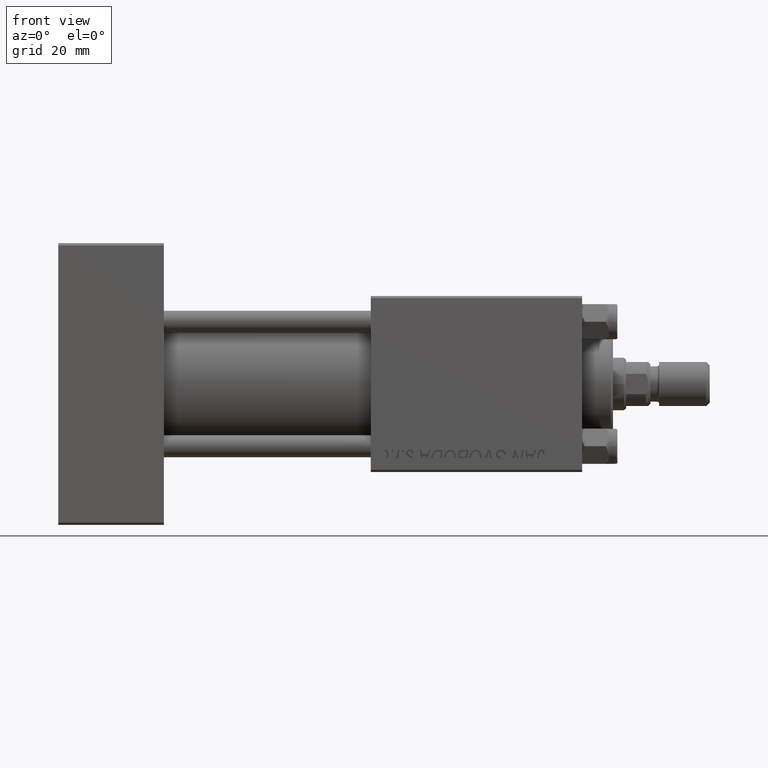
[diagram: clean part render]
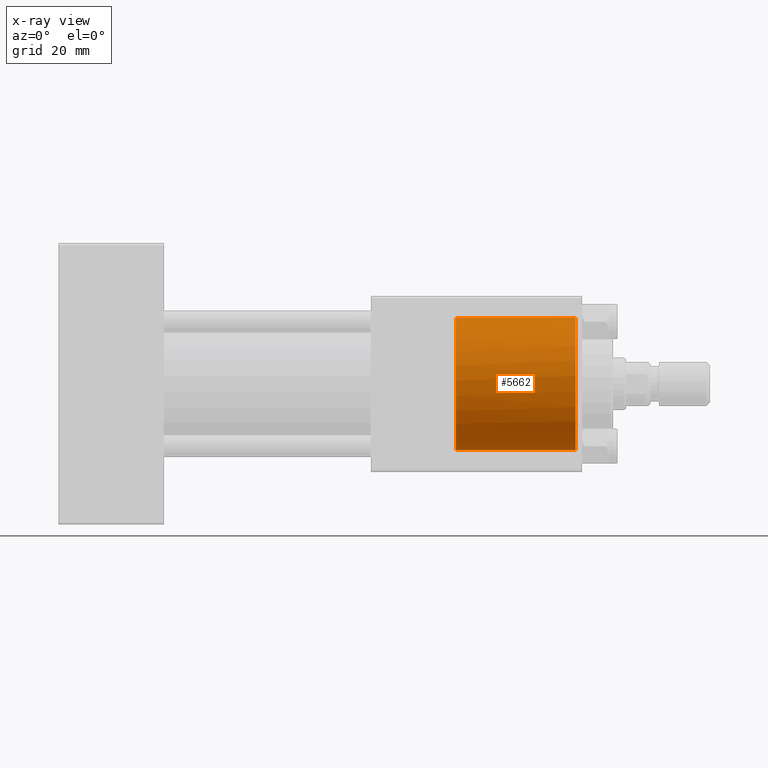
[diagram: x-ray — body ghosted, one internal face saturated and labeled with its STEP entity id]
A machine part, front view, then the same camera in x-ray: the body is ghosted and one INTERNAL B-rep face — a face not visible from any outside direction — is saturated and labeled: STEP entity #5662.
In plain terms, the highlighted cylindrical surface (partial cylindrical patch) has radius 15 mm, axis along (1, 0, 0).
Its self-contained STEP definition (entity closure, byte-faithful):
#595 = CIRCLE ( 'NONE', #33956, 15.00000000000000000 ) ;
#1414 = LINE ( 'NONE', #21283, #32960 ) ;
#2288 = VERTEX_POINT ( 'NONE', #40866 ) ;
#2489 = DIRECTION ( 'NONE',  ( 1.000000000000000000, -0.000000000000000000, -0.000000000000000000 ) ) ;
#3027 = CARTESIAN_POINT ( 'NONE',  ( 90.48627106246553353, -1.281108574220369167, 14.95816952780117504 ) ) ;
#4380 = VERTEX_POINT ( 'NONE', #9031 ) ;
#4706 = EDGE_CURVE ( 'NONE', #2288, #4380, #48576, .T. ) ;
#5662 = ADVANCED_FACE ( 'NONE', ( #26509 ), #37500, .F. ) ;
#5821 = DIRECTION ( 'NONE',  ( 1.000000000000000000, 0.000000000000000000, 0.000000000000000000 ) ) ;
#5831 = VECTOR ( 'NONE', #2489, 1000.000000000000000 ) ;
#7180 = DIRECTION ( 'NONE',  ( 0.000000000000000000, 0.000000000000000000, -1.000000000000000000 ) ) ;
#7770 = CARTESIAN_POINT ( 'NONE',  ( 90.30000000000001137, 0.000000000000000000, -15.00000000000000000 ) ) ;
#9031 = CARTESIAN_POINT ( 'NONE',  ( 117.5000000000000142, 1.836970198721029589E-15, 15.00000000000000000 ) ) ;
#10090 = DIRECTION ( 'NONE',  ( 1.000000000000000000, -0.000000000000000000, -0.000000000000000000 ) ) ;
#10578 = CIRCLE ( 'NONE', #48820, 15.00000000000000000 ) ;
#12420 = ORIENTED_EDGE ( 'NONE', *, *, #15391, .F. ) ;
#14801 = AXIS2_PLACEMENT_3D ( 'NONE', #30590, #49220, #7180 ) ;
#15391 = EDGE_CURVE ( 'NONE', #41285, #49831, #1414, .T. ) ;
#16794 = CARTESIAN_POINT ( 'NONE',  ( 90.30000000000001137, 0.000000000000000000, 0.000000000000000000 ) ) ;
#20728 = ORIENTED_EDGE ( 'NONE', *, *, #29446, .T. ) ;
#21085 = CARTESIAN_POINT ( 'NONE',  ( 117.5000000000000142, 0.000000000000000000, 0.000000000000000000 ) ) ;
#21283 = CARTESIAN_POINT ( 'NONE',  ( 90.30000000000001137, 0.000000000000000000, -15.00000000000000000 ) ) ;
#21562 = ORIENTED_EDGE ( 'NONE', *, *, #35892, .T. ) ;
#21758 = CARTESIAN_POINT ( 'NONE',  ( 90.30000000000001137, -1.899052395280420136, 14.87930105885285670 ) ) ;
#21861 = CARTESIAN_POINT ( 'NONE',  ( 90.30000000000001137, -1.899052395280420136, 14.87930105885285670 ) ) ;
#22104 = DIRECTION ( 'NONE',  ( 0.000000000000000000, 0.000000000000000000, 1.000000000000000000 ) ) ;
#25181 = ORIENTED_EDGE ( 'NONE', *, *, #4706, .T. ) ;
#26509 = FACE_OUTER_BOUND ( 'NONE', #38172, .T. ) ;
#29446 = EDGE_CURVE ( 'NONE', #4380, #49831, #10578, .T. ) ;
#30590 = CARTESIAN_POINT ( 'NONE',  ( 90.30000000000001137, 0.000000000000000000, 0.000000000000000000 ) ) ;
#32960 = VECTOR ( 'NONE', #10090, 1000.000000000000000 ) ;
#33337 = CARTESIAN_POINT ( 'NONE',  ( 90.58000000000154728, -0.6482402319151109316, 15.00000000000000000 ) ) ;
#33956 = AXIS2_PLACEMENT_3D ( 'NONE', #16794, #36671, #39714 ) ;
#34547 = CARTESIAN_POINT ( 'NONE',  ( 117.5000000000000142, 0.000000000000000000, -15.00000000000000000 ) ) ;
#34900 = ORIENTED_EDGE ( 'NONE', *, *, #42916, .F. ) ;
#35892 = EDGE_CURVE ( 'NONE', #46050, #2288, #50191, .T. ) ;
#36671 = DIRECTION ( 'NONE',  ( 1.000000000000000000, 0.000000000000000000, 0.000000000000000000 ) ) ;
#37375 = CARTESIAN_POINT ( 'NONE',  ( 90.30000000000001137, 1.836970198721029589E-15, 15.00000000000000000 ) ) ;
#37417 = CARTESIAN_POINT ( 'NONE',  ( 90.58000000000154728, 1.837042777381032933E-15, 15.00000000000000000 ) ) ;
#37500 = CYLINDRICAL_SURFACE ( 'NONE', #14801, 15.00000000000000000 ) ;
#38172 = EDGE_LOOP ( 'NONE', ( #21562, #25181, #20728, #12420, #34900 ) ) ;
#39714 = DIRECTION ( 'NONE',  ( 0.000000000000000000, 0.000000000000000000, -1.000000000000000000 ) ) ;
#40866 = CARTESIAN_POINT ( 'NONE',  ( 90.58000000000154728, 1.837042777381032933E-15, 15.00000000000000000 ) ) ;
#41285 = VERTEX_POINT ( 'NONE', #7770 ) ;
#42916 = EDGE_CURVE ( 'NONE', #46050, #41285, #595, .T. ) ;
#46050 = VERTEX_POINT ( 'NONE', #21758 ) ;
#48576 = LINE ( 'NONE', #37375, #5831 ) ;
#48820 = AXIS2_PLACEMENT_3D ( 'NONE', #21085, #5821, #22104 ) ;
#49220 = DIRECTION ( 'NONE',  ( 1.000000000000000000, -0.000000000000000000, -0.000000000000000000 ) ) ;
#49831 = VERTEX_POINT ( 'NONE', #34547 ) ;
#50191 = B_SPLINE_CURVE_WITH_KNOTS ( 'NONE', 3,
 ( #21861, #3027, #33337, #37417 ),
 .UNSPECIFIED., .F., .F.,
 ( 4, 4 ),
 ( 0.000000000000000000, 0.001923267627926022365 ),
 .UNSPECIFIED. ) ;